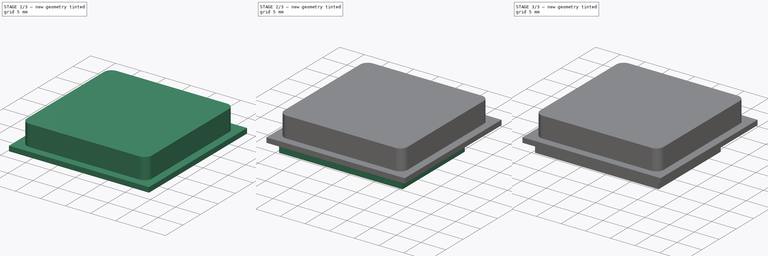
[diagram: build sequence overview — one tinted view per stage of 3, left to right]
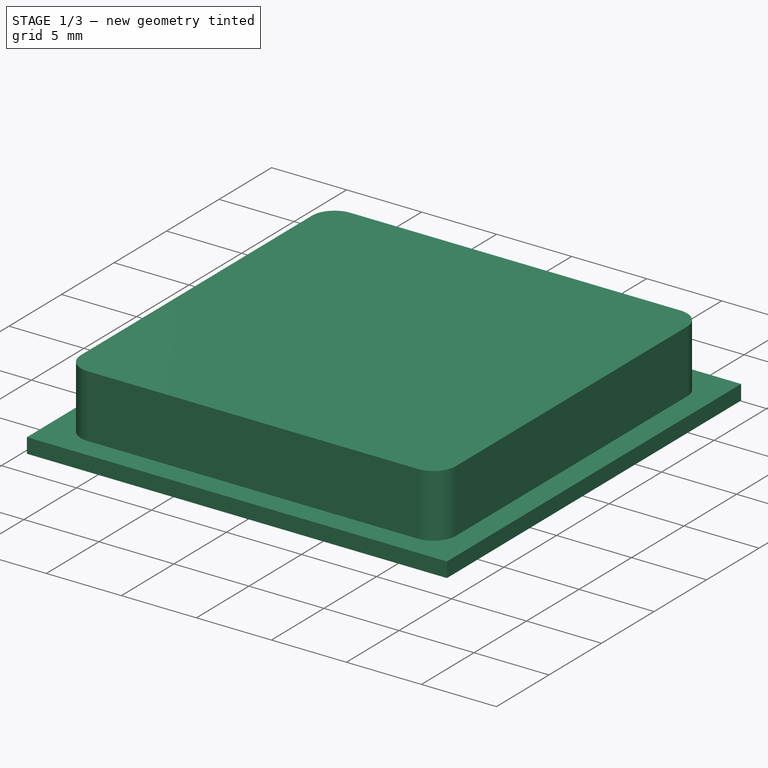
[diagram: stage 1 of 3 — iso view after this stage's code; geometry added in this stage tinted green]
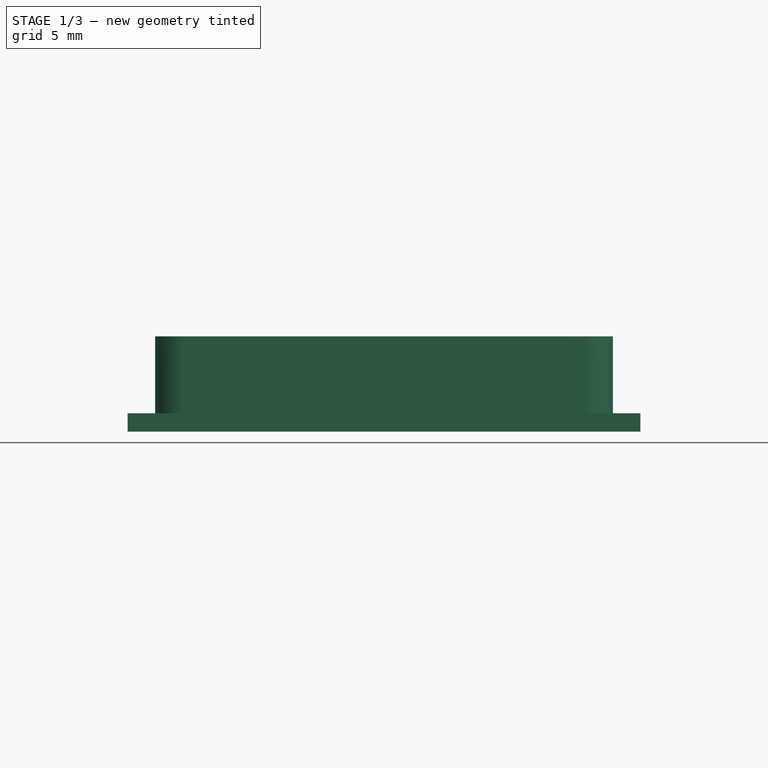
[diagram: stage 1 of 3 — front view after this stage's code; geometry added in this stage tinted green]
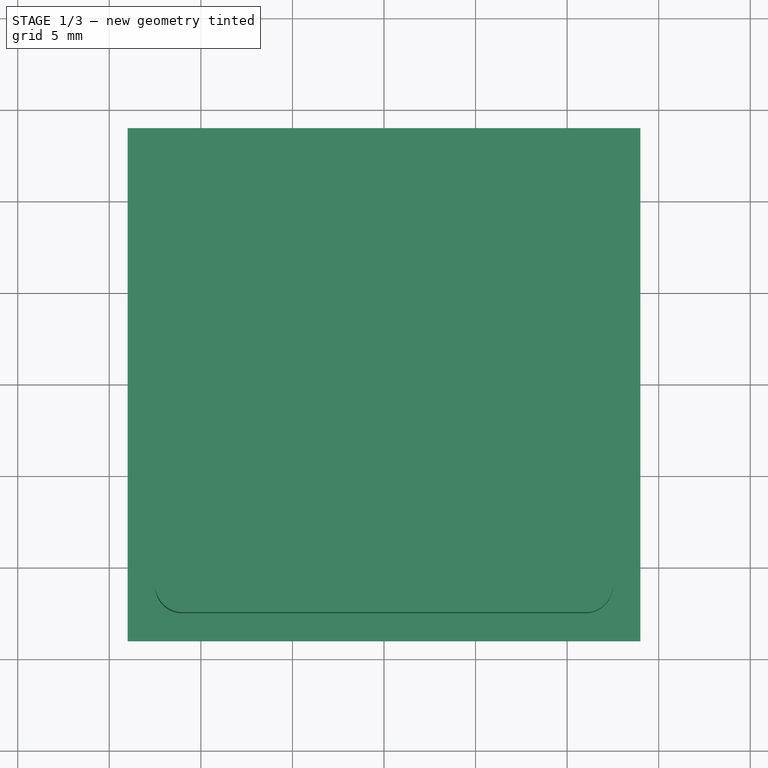
[diagram: stage 1 of 3 — top view after this stage's code; geometry added in this stage tinted green]
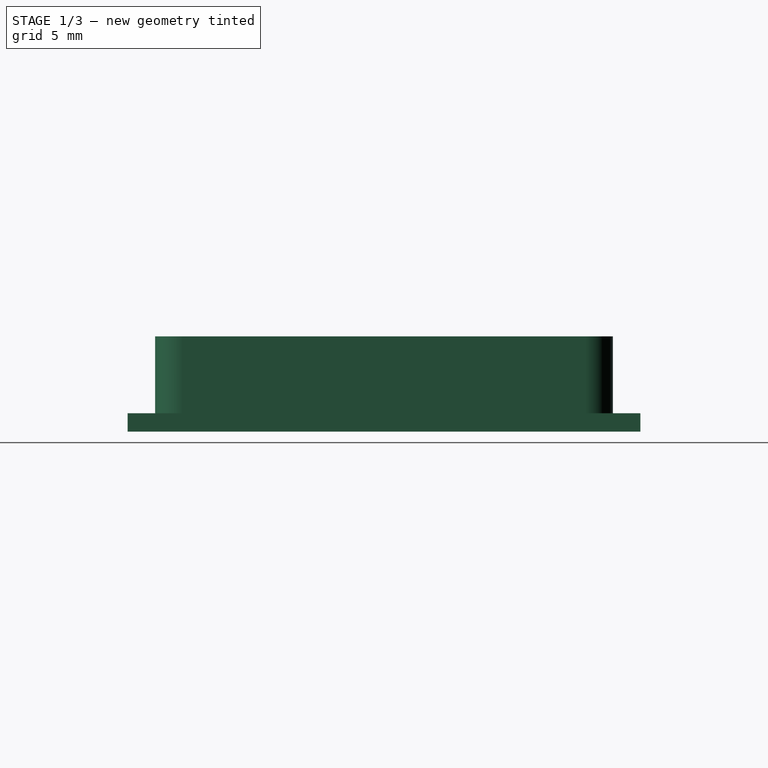
[diagram: stage 1 of 3 — right view after this stage's code; geometry added in this stage tinted green]
FCSTD DOCUMENT  (FreeCAD 0.17RUnknown)
Label: gps
License: All rights reserved
LicenseURL: http://en.wikipedia.org/wiki/All_rights_reserved
objects: Sketcher::SketchObject×6, PartDesign::Pad×5, PartDesign::Pocket×1, PartDesign::Body×1, App::Part×1
note: 19 computed .brp shape members not serialized (recipe doc carries the construction recipe); baked Part::Feature solids carry a one-line shape summary decoded from their .brp

FEATURE [Sketcher::SketchObject] Sketch
  MapMode = 5
  Support = -> [XY_Plane001]
  sketch-geometry (4):
    g0: LineSegment StartX=-14 StartY=14 StartZ=0 EndX=14 EndY=14 EndZ=0
    g1: LineSegment StartX=14 StartY=14 StartZ=0 EndX=14 EndY=-14 EndZ=0
    g2: LineSegment StartX=14 StartY=-14 StartZ=0 EndX=-14 EndY=-14 EndZ=0
    g3: LineSegment StartX=-14 StartY=-14 StartZ=0 EndX=-14 EndY=14 EndZ=0
  constraints (11):
    c: Coincident(g0,g1)
    c: Coincident(g1,g2)
    c: Coincident(g2,g3)
    c: Coincident(g3,g0)
    c: Horizontal(g0)
    c: Horizontal(g2)
    c: Vertical(g1)
    c: Vertical(g3)
    c: DistanceX(g0,g0) = 28
    c: DistanceY(g1,g1) = 28
    c: Symmetric(g2,g0,g-1)
FEATURE [PartDesign::Pad] Pad
  Length = 1
  Length2 = 100
  Profile = -> Sketch
  Type = 0
FEATURE [Sketcher::SketchObject] Sketch001
  MapMode = 5
  Placement = pos=(0,0,1) rot=(0,0,1;0rad)
  Support = -> [Pad]
  sketch-geometry (8):
    g0: LineSegment StartX=-11 StartY=12.5 StartZ=0 EndX=11 EndY=12.5 EndZ=0
    g1: LineSegment StartX=12.5 StartY=11 StartZ=0 EndX=12.5 EndY=-11 EndZ=0
    g2: LineSegment StartX=11 StartY=-12.5 StartZ=0 EndX=-11 EndY=-12.5 EndZ=0
    g3: LineSegment StartX=-12.5 StartY=-11 StartZ=0 EndX=-12.5 EndY=11 EndZ=0
    g4: ArcOfCircle CenterX=-11 CenterY=11 CenterZ=0 NormalX=0 NormalY=0 NormalZ=1 AngleXU=0 Radius=1.5 StartAngle=1.5708 EndAngle=3.14159
    g5: ArcOfCircle CenterX=11 CenterY=11 CenterZ=0 NormalX=0 NormalY=0 NormalZ=1 AngleXU=0 Radius=1.5 StartAngle=0 EndAngle=1.5708
    g6: ArcOfCircle CenterX=11 CenterY=-11 CenterZ=0 NormalX=0 NormalY=0 NormalZ=1 AngleXU=0 Radius=1.5 StartAngle=4.71239 EndAngle=6.28319
    g7: ArcOfCircle CenterX=-11 CenterY=-11 CenterZ=0 NormalX=0 NormalY=0 NormalZ=1 AngleXU=0 Radius=1.5 StartAngle=3.14159 EndAngle=4.71239
  constraints (19):
    c: Horizontal(g0)
    c: Horizontal(g2)
    c: Vertical(g1)
    c: Vertical(g3)
    c: Tangent(g0,g4) = 1.5708
    c: Tangent(g3,g4) = 1.5708
    c: Tangent(g0,g5) = 1.5708
    c: Tangent(g1,g5) = 1.5708
    c: Tangent(g1,g6) = 1.5708
    c: Tangent(g2,g6) = 1.5708
    c: Tangent(g3,g7) = 1.5708
    c: Tangent(g2,g7) = 1.5708
    c: Equal(g7,g6)
    c: Equal(g6,g5)
    c: Equal(g5,g4)
    c: Radius(g4) = 1.5
    c: Symmetric(g5,g7,g-1)
    c: DistanceY(g2,g0) = 25
    c: DistanceX(g3,g1) = 25
FEATURE [PartDesign::Pad] Pad001
  BaseFeature = -> Pad
  Length = 4.2
  Length2 = 100
  Profile = -> Sketch001
  Type = 0
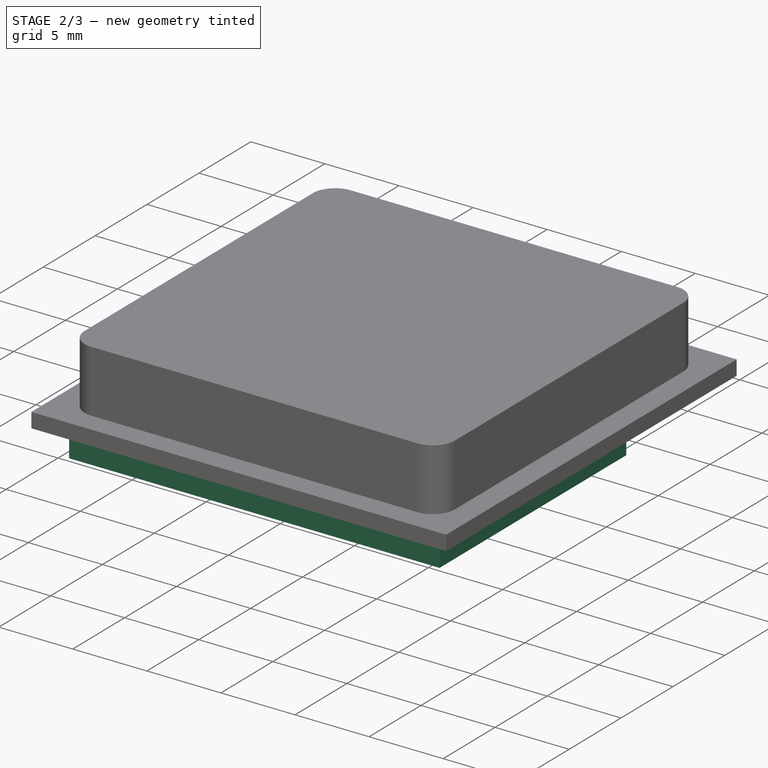
[diagram: stage 2 of 3 — iso view after this stage's code; geometry added in this stage tinted green]
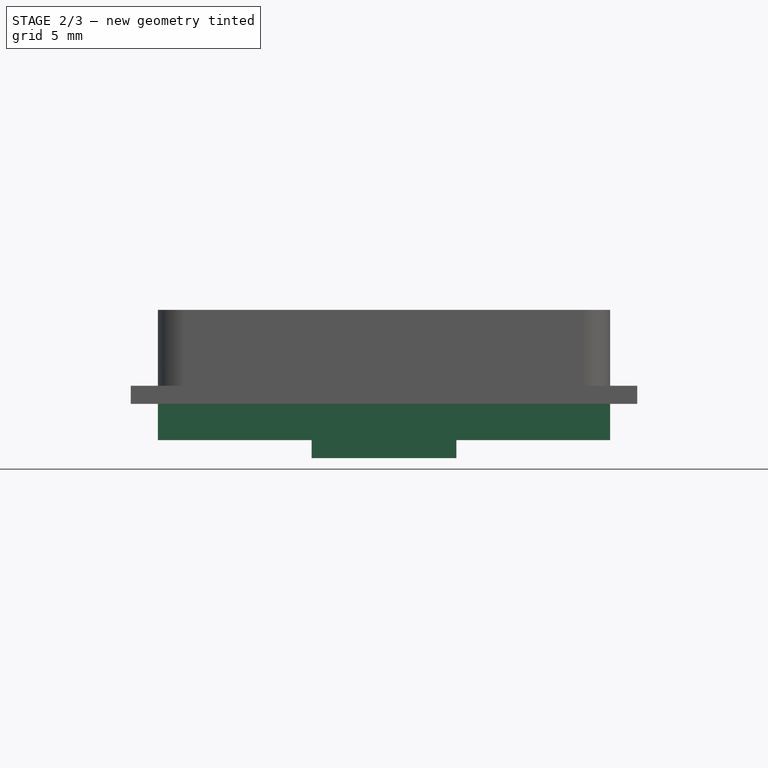
[diagram: stage 2 of 3 — front view after this stage's code; geometry added in this stage tinted green]
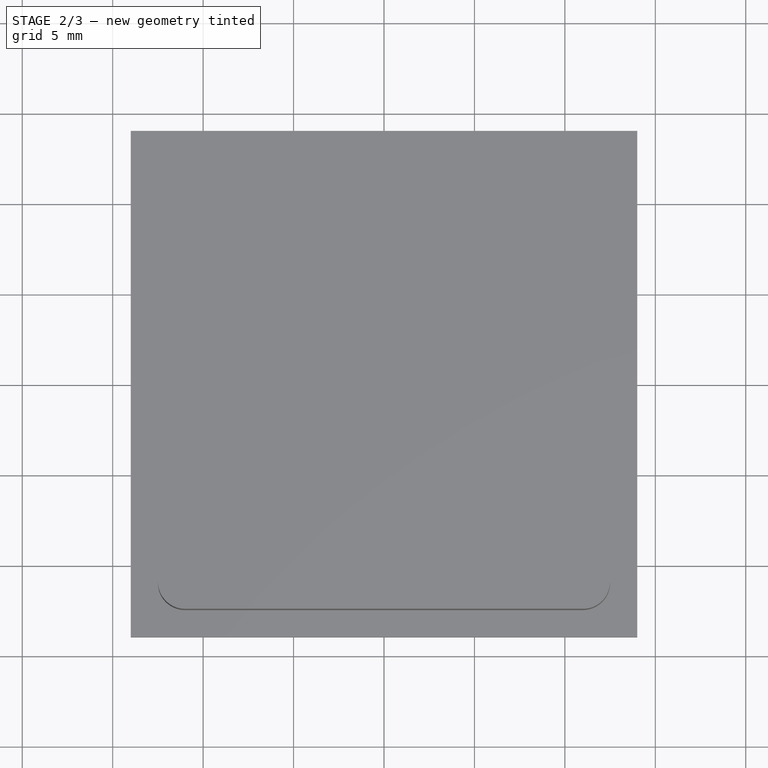
[diagram: stage 2 of 3 — top view after this stage's code; geometry added in this stage tinted green]
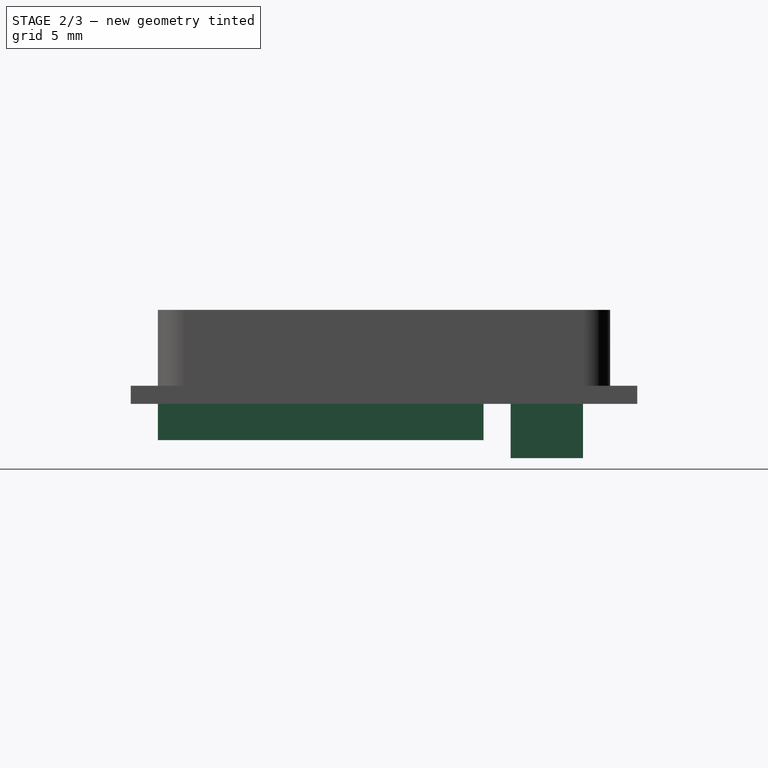
[diagram: stage 2 of 3 — right view after this stage's code; geometry added in this stage tinted green]
FEATURE [Sketcher::SketchObject] Sketch002
  MapMode = 5
  Placement = pos=(0,0,0) rot=(1,0,0;3.14159rad)
  Support = -> [Pad001]
  sketch-geometry (4):
    g0: LineSegment StartX=-4 StartY=-7 StartZ=0 EndX=4 EndY=-7 EndZ=0
    g1: LineSegment StartX=4 StartY=-7 StartZ=0 EndX=4 EndY=-11 EndZ=0
    g2: LineSegment StartX=4 StartY=-11 StartZ=0 EndX=-4 EndY=-11 EndZ=0
    g3: LineSegment StartX=-4 StartY=-11 StartZ=0 EndX=-4 EndY=-7 EndZ=0
  constraints (12):
    c: Coincident(g0,g1)
    c: Coincident(g1,g2)
    c: Coincident(g2,g3)
    c: Coincident(g3,g0)
    c: Horizontal(g0)
    c: Horizontal(g2)
    c: Vertical(g1)
    c: Vertical(g3)
    c: Symmetric(g1,g2,g-2)
    c: DistanceY(g2,g0) = 4
    c: DistanceX(g0,g0) = 8
    c: DistanceY(g-1,g1) = -11
FEATURE [PartDesign::Pad] Pad002
  BaseFeature = -> Pad001
  Length = 3
  Length2 = 100
  Profile = -> Sketch002
  Type = 0
FEATURE [Sketcher::SketchObject] Sketch003
  MapMode = 5
  Placement = pos=(0,0,0) rot=(1,0,0;3.14159rad)
  Support = -> [Pad002]
  sketch-geometry (4):
    g0: LineSegment StartX=-12.5 StartY=12.5 StartZ=0 EndX=12.5 EndY=12.5 EndZ=0
    g1: LineSegment StartX=12.5 StartY=12.5 StartZ=0 EndX=12.5 EndY=-5.5 EndZ=0
    g2: LineSegment StartX=12.5 StartY=-5.5 StartZ=0 EndX=-12.5 EndY=-5.5 EndZ=0
    g3: LineSegment StartX=-12.5 StartY=-5.5 StartZ=0 EndX=-12.5 EndY=12.5 EndZ=0
  constraints (12):
    c: Coincident(g0,g1)
    c: Coincident(g1,g2)
    c: Coincident(g2,g3)
    c: Coincident(g3,g0)
    c: Horizontal(g0)
    c: Horizontal(g2)
    c: Vertical(g1)
    c: Vertical(g3)
    c: DistanceY(g1,g1) = 18
    c: DistanceX(g0,g0) = 25
    c: Symmetric(g2,g1,g-2)
    c: DistanceY(g1,g-1) = 5.5
FEATURE [PartDesign::Pad] Pad003
  BaseFeature = -> Pad002
  Length = 2
  Length2 = 100
  Profile = -> Sketch003
  Type = 0
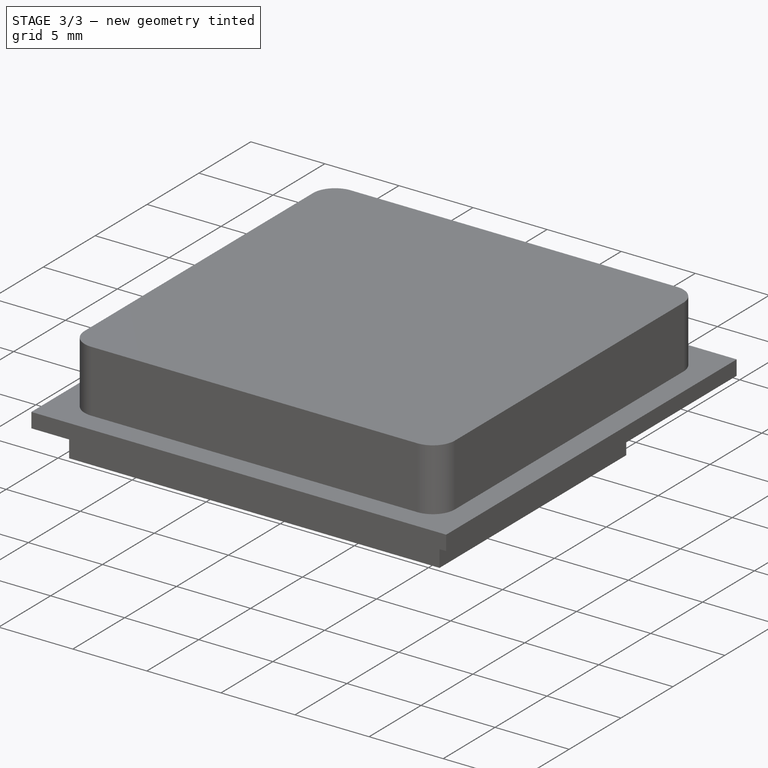
[diagram: stage 3 of 3 — iso view after this stage's code; geometry added in this stage tinted green]
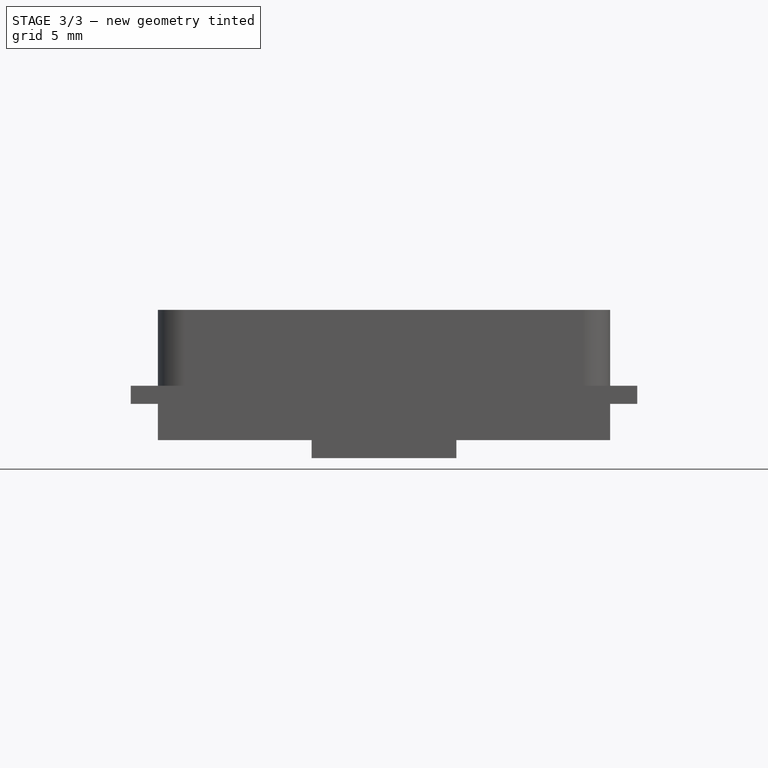
[diagram: stage 3 of 3 — front view after this stage's code; geometry added in this stage tinted green]
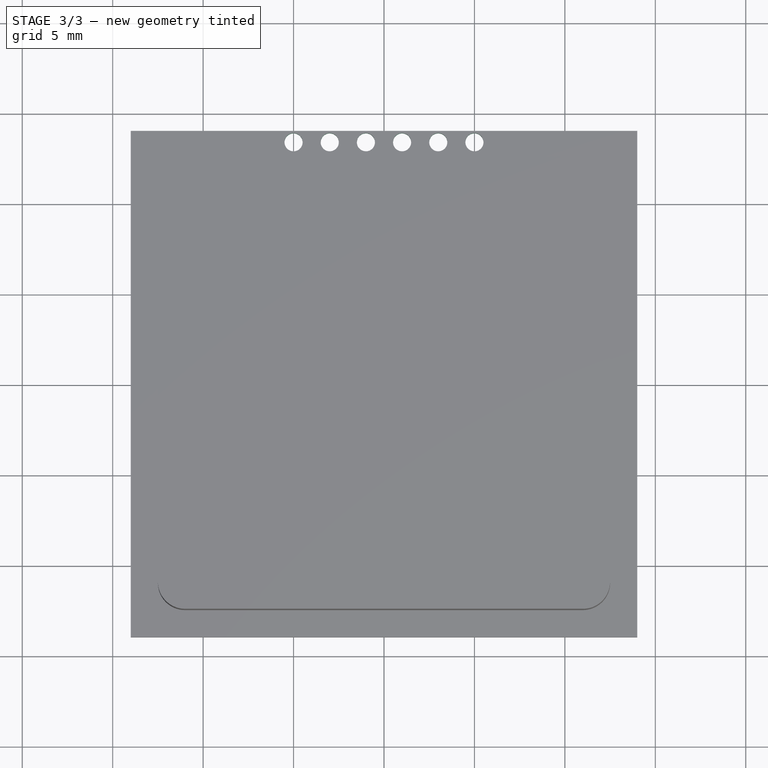
[diagram: stage 3 of 3 — top view after this stage's code; geometry added in this stage tinted green]
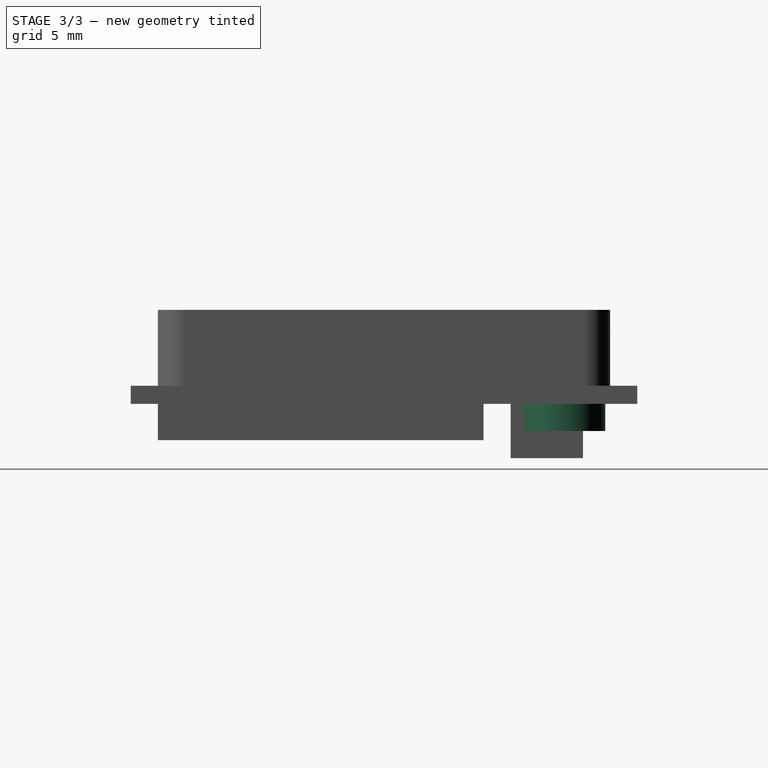
[diagram: stage 3 of 3 — right view after this stage's code; geometry added in this stage tinted green]
FEATURE [Sketcher::SketchObject] Sketch004
  MapMode = 5
  Placement = pos=(0,0,0) rot=(1,0,0;3.14159rad)
  Support = -> [Pad003]
  sketch-geometry (1):
    g0: Circle CenterX=9 CenterY=-10 CenterZ=0 NormalX=0 NormalY=0 NormalZ=1 AngleXU=0 Radius=2.23607
FEATURE [PartDesign::Pad] Pad004
  BaseFeature = -> Pad003
  Length = 1.5
  Length2 = 100
  Profile = -> Sketch004
  Type = 0
FEATURE [Sketcher::SketchObject] Sketch005
  MapMode = 5
  Placement = pos=(0,0,0) rot=(1,0,0;3.14159rad)
  Support = -> [Pad004]
  sketch-geometry (11):
    g0: Circle CenterX=-5 CenterY=-13.37 CenterZ=0 NormalX=0 NormalY=0 NormalZ=1 AngleXU=0 Radius=0.5
    g1: Circle CenterX=-3 CenterY=-13.37 CenterZ=0 NormalX=0 NormalY=0 NormalZ=1 AngleXU=0 Radius=0.5
    g2: LineSegment [constr] StartX=-5 StartY=-13.37 StartZ=0 EndX=-3 EndY=-13.37 EndZ=0
    g3: Circle CenterX=-1 CenterY=-13.37 CenterZ=0 NormalX=0 NormalY=0 NormalZ=1 AngleXU=0 Radius=0.5
    g4: LineSegment [constr] StartX=-3 StartY=-13.37 StartZ=0 EndX=-1 EndY=-13.37 EndZ=0
    g5: Circle CenterX=1 CenterY=-13.37 CenterZ=0 NormalX=0 NormalY=0 NormalZ=1 AngleXU=0 Radius=0.5
    g6: LineSegment [constr] StartX=-1 StartY=-13.37 StartZ=0 EndX=1 EndY=-13.37 EndZ=0
    g7: Circle CenterX=3 CenterY=-13.37 CenterZ=0 NormalX=0 NormalY=0 NormalZ=1 AngleXU=0 Radius=0.5
    g8: LineSegment [constr] StartX=1 StartY=-13.37 StartZ=0 EndX=3 EndY=-13.37 EndZ=0
    g9: Circle CenterX=5 CenterY=-13.37 CenterZ=0 NormalX=0 NormalY=0 NormalZ=1 AngleXU=0 Radius=0.5
    g10: LineSegment [constr] StartX=3 StartY=-13.37 StartZ=0 EndX=5 EndY=-13.37 EndZ=0
  constraints (28):
    c: Radius(g0) = 0.5
    c: Equal(g0,g1) = 0.5
    c: Coincident(g0,g2)
    c: Coincident(g1,g2)
    c: Distance(g2) = 2
    c: Angle(g2) = 0
    c: Equal(g0,g3) = 0.5
    c: Coincident(g1,g4)
    c: Coincident(g3,g4)
    c: Equal(g2,g4)
    c: Parallel(g4,g2)
    c: Equal(g0,g5) = 0.5
    c: Coincident(g3,g6)
    c: Coincident(g5,g6)
    c: Equal(g2,g6)
    c: Parallel(g6,g2)
    c: Equal(g0,g7) = 0.5
    c: Coincident(g5,g8)
    c: Coincident(g7,g8)
    c: Equal(g2,g8)
    c: Parallel(g8,g2)
    c: Equal(g0,g9) = 0.5
    c: Coincident(g7,g10)
    c: Coincident(g9,g10)
    c: Equal(g2,g10)
    c: Parallel(g10,g2)
    c: Symmetric(g3,g5,g-2)
    c: DistanceY(g9,g-1) = 13.37
FEATURE [PartDesign::Pocket] Pocket
  BaseFeature = -> Pad004
  Length = 5
  Length2 = 100
  Profile = -> Sketch005
  Type = 1
FEATURE [PartDesign::Body] Body
  Group = -> [Sketch,Pad,Sketch001,Pad001,Sketch002,Pad002,Sketch003,Pad003,Sketch004,Pad004,Sketch005,Pocket]
  Origin = -> Origin001
  Tip = -> Pocket
FEATURE [App::Part] Part
  Group = -> [Body]
  License = CC BY 3.0
  LicenseURL = http://creativecommons.org/licenses/by/3.0/
  Origin = -> Origin
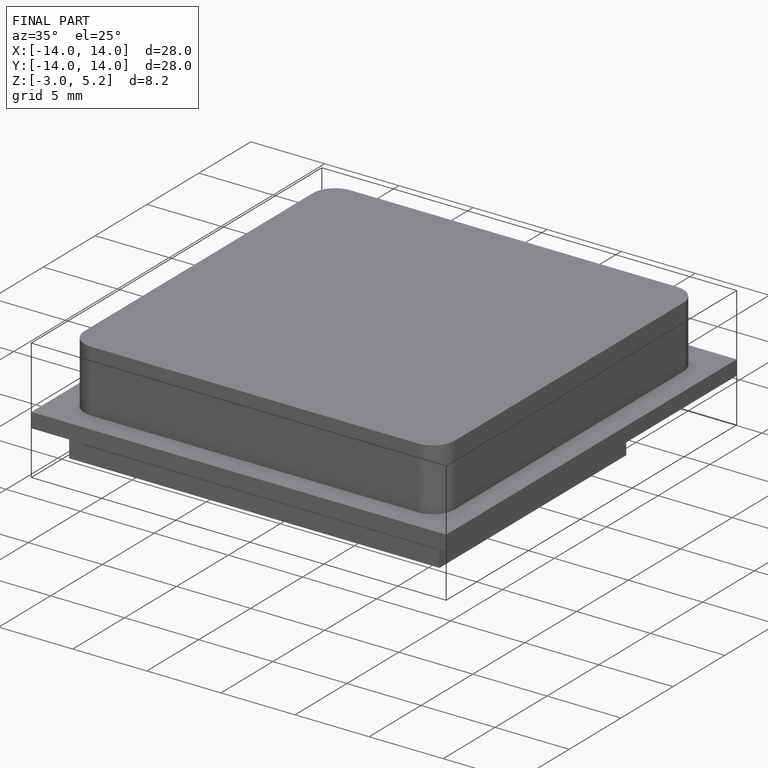
[diagram: finished part — iso view with bounding-box wireframe]
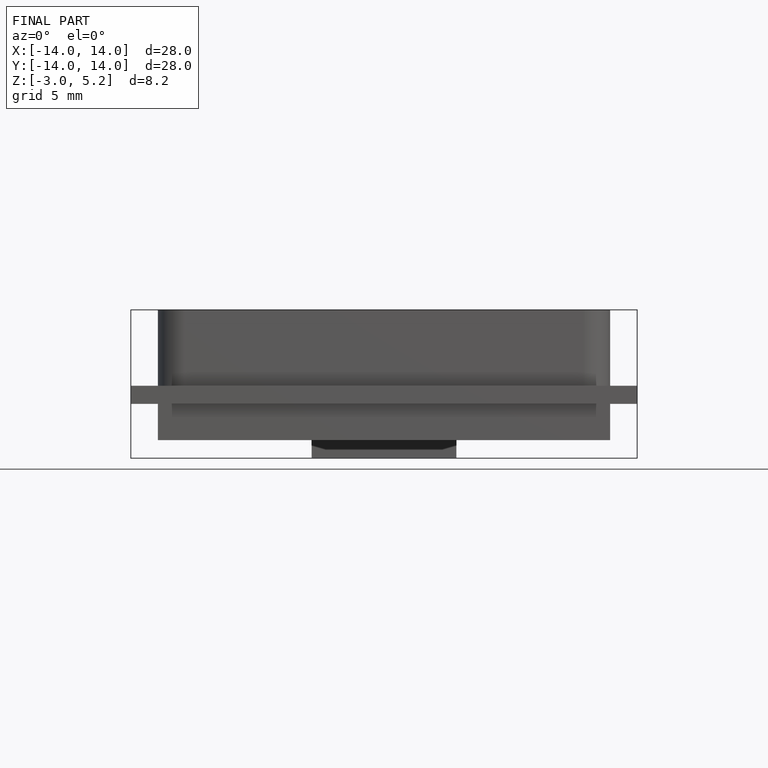
[diagram: finished part — front view with bounding-box wireframe]
